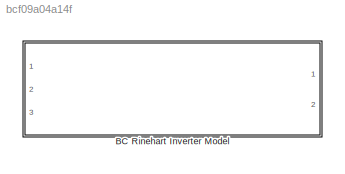
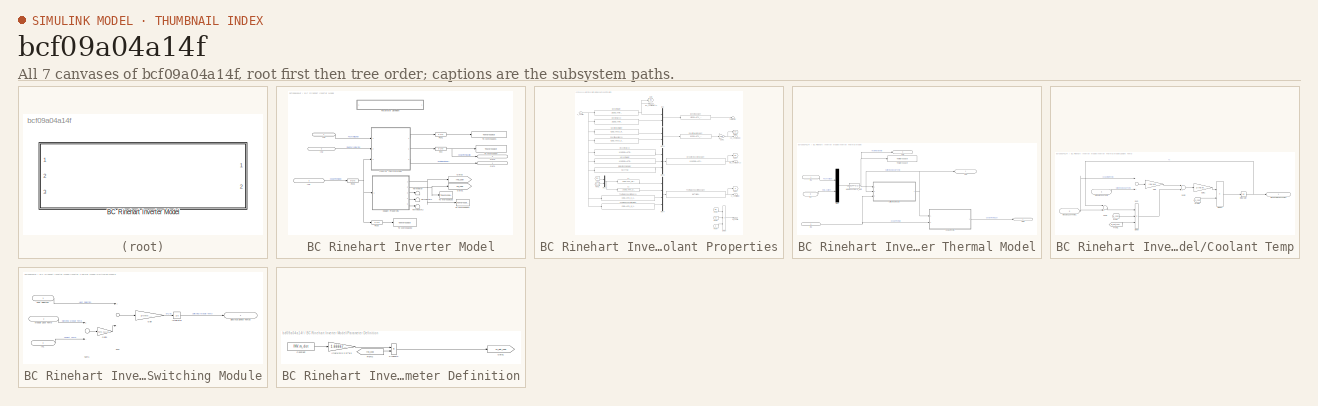
[diagram: thumbnail index - all 7 canvases of the model, root first then tree order]
MODEL slx_bcf09a04a14f
KIND model
CONFIG AbsTol = auto
CONFIG EnableMultiTasking = off
CONFIG FixedStep = 0.1
CONFIG MaxStep = auto
CONFIG MinStep = auto
CONFIG RelTol = 1e-3
CONFIG SampleTimeConstraint = Unconstrained
CONFIG Solver = ode4
CONFIG SolverName = ode4
CONFIG StartTime = 0.0
CONFIG StopTime = T_end
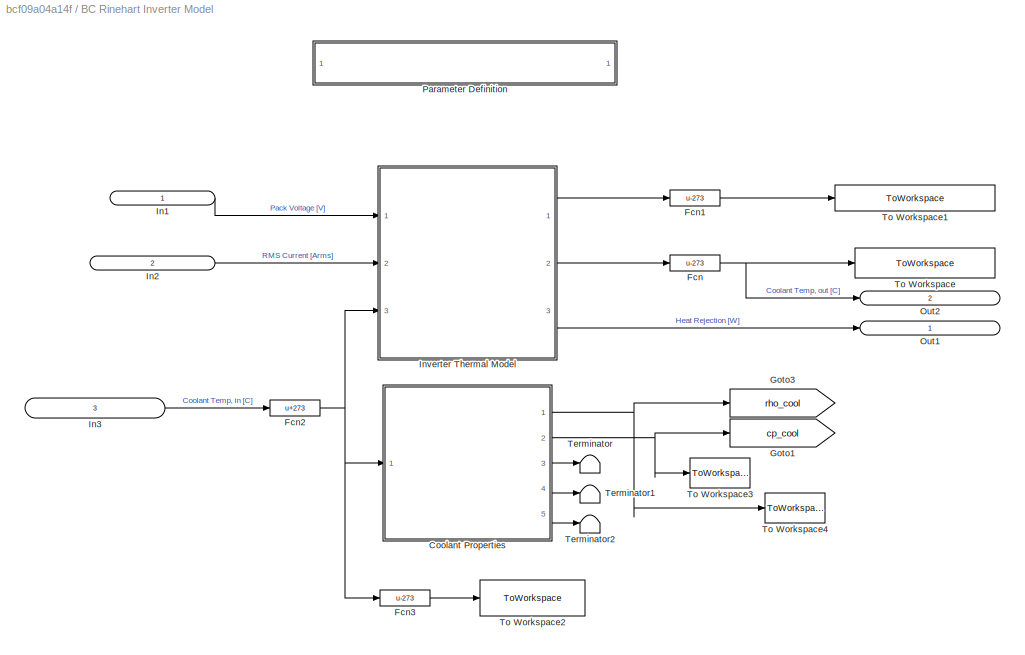
BLOCK [SubSystem] BC Rinehart Inverter Model
  Ports = [3, 2]
  RequestExecContextInheritance = off
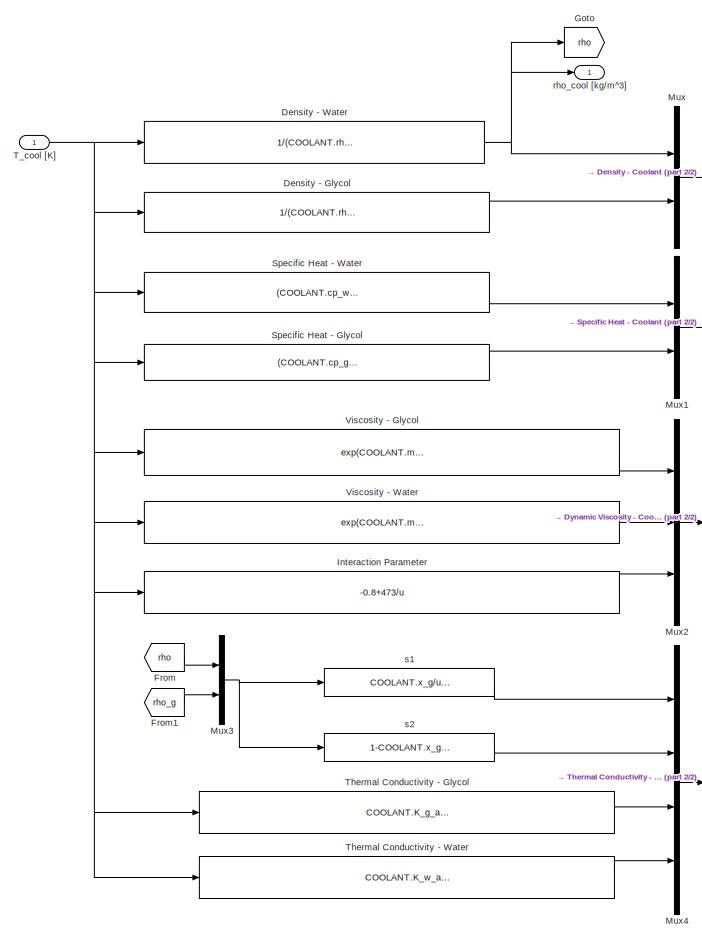
[diagram: BC Rinehart Inverter Model/Coolant Properties - part 1/2, left side, full height]
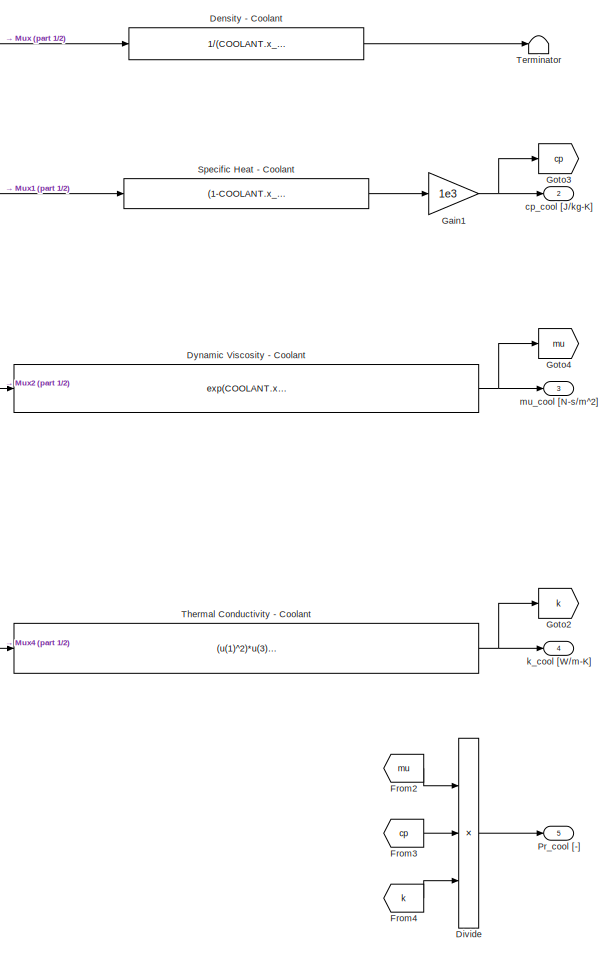
[diagram: BC Rinehart Inverter Model/Coolant Properties - part 2/2, right side, full height]
BLOCK [SubSystem] BC Rinehart Inverter Model/Coolant Properties
  Ports = [1, 5]
  RequestExecContextInheritance = off
BLOCK [Fcn] BC Rinehart Inverter Model/Coolant Properties/Density - Coolant
  Expr = 1/(COOLANT.x_g/u(1) + COOLANT.x_g/u(2))
BLOCK [Fcn] BC Rinehart Inverter Model/Coolant Properties/Density - Glycol
  Expr = 1/(COOLANT.rho_g_a+COOLANT.rho_g_b*u+COOLANT.rho_g_c*u^2)
BLOCK [Fcn] BC Rinehart Inverter Model/Coolant Properties/Density - Water
  Expr = 1/(COOLANT.rho_w_a+COOLANT.rho_w_b*u+COOLANT.rho_w_c*u^2)
BLOCK [Product] BC Rinehart Inverter Model/Coolant Properties/Divide
  InputSameDT = off
  Inputs = **/
  OutDataTypeStr = Inherit: Inherit via internal rule
  Ports = [3, 1]
  RndMeth = Floor
  SaturateOnIntegerOverflow = off
BLOCK [Fcn] BC Rinehart Inverter Model/Coolant Properties/Dynamic Viscosity - Coolant
  Expr = exp(COOLANT.x_g*log(u(1))+(1-COOLANT.x_g)*log(u(2))-COOLANT.x_g*(1-COOLANT.x_g)*u(3))
BLOCK [From] BC Rinehart Inverter Model/Coolant Properties/From
  GotoTag = rho
BLOCK [From] BC Rinehart Inverter Model/Coolant Properties/From1
  Commented = on
  GotoTag = rho_g
BLOCK [From] BC Rinehart Inverter Model/Coolant Properties/From2
  GotoTag = mu
BLOCK [From] BC Rinehart Inverter Model/Coolant Properties/From3
  GotoTag = cp
BLOCK [From] BC Rinehart Inverter Model/Coolant Properties/From4
  GotoTag = k
BLOCK [Gain] BC Rinehart Inverter Model/Coolant Properties/Gain1
  Gain = 1e3
  OutDataTypeStr = Inherit: Inherit via internal rule
  ParamDataTypeStr = Inherit: Inherit via internal rule
  SaturateOnIntegerOverflow = off
BLOCK [Goto] BC Rinehart Inverter Model/Coolant Properties/Goto
  GotoTag = rho
BLOCK [Goto] BC Rinehart Inverter Model/Coolant Properties/Goto2
  GotoTag = k
BLOCK [Goto] BC Rinehart Inverter Model/Coolant Properties/Goto3
  GotoTag = cp
BLOCK [Goto] BC Rinehart Inverter Model/Coolant Properties/Goto4
  GotoTag = mu
BLOCK [Fcn] BC Rinehart Inverter Model/Coolant Properties/Interaction Parameter
  Expr = -0.8+473/u
BLOCK [Mux] BC Rinehart Inverter Model/Coolant Properties/Mux
  DisplayOption = bar
  Inputs = 2
  Ports = [2, 1]
BLOCK [Mux] BC Rinehart Inverter Model/Coolant Properties/Mux1
  DisplayOption = bar
  Inputs = 2
  Ports = [2, 1]
BLOCK [Mux] BC Rinehart Inverter Model/Coolant Properties/Mux2
  DisplayOption = bar
  Inputs = 3
  Ports = [3, 1]
BLOCK [Mux] BC Rinehart Inverter Model/Coolant Properties/Mux3
  DisplayOption = bar
  Inputs = 2
  Ports = [2, 1]
BLOCK [Mux] BC Rinehart Inverter Model/Coolant Properties/Mux4
  DisplayOption = bar
  Ports = [4, 1]
BLOCK [Outport] BC Rinehart Inverter Model/Coolant Properties/Pr_cool [-]
  IconDisplay = Port number
  Port = 5
BLOCK [Fcn] BC Rinehart Inverter Model/Coolant Properties/Specific Heat - Coolant
  Expr = (1-COOLANT.x_g)*u(1) + COOLANT.x_g*u(2)
BLOCK [Fcn] BC Rinehart Inverter Model/Coolant Properties/Specific Heat - Glycol
  Expr = (COOLANT.cp_g_a+COOLANT.cp_g_b*u)
BLOCK [Fcn] BC Rinehart Inverter Model/Coolant Properties/Specific Heat - Water
  Expr = (COOLANT.cp_w_a+COOLANT.cp_w_b*u)
BLOCK [Inport] BC Rinehart Inverter Model/Coolant Properties/T_cool [K]
  IconDisplay = Port number
BLOCK [Terminator] BC Rinehart Inverter Model/Coolant Properties/Terminator
BLOCK [Fcn] BC Rinehart Inverter Model/Coolant Properties/Thermal Conductivity - Coolant
  Expr = (u(1)^2)*u(3)+2*u(1)*u(2)*(2/(1/u(4)+1/u(3)))+(u(2)^2)*u(4)
BLOCK [Fcn] BC Rinehart Inverter Model/Coolant Properties/Thermal Conductivity - Glycol
  Expr = COOLANT.K_g_a + COOLANT.K_g_b*u + COOLANT.K_g_c*u^2
BLOCK [Fcn] BC Rinehart Inverter Model/Coolant Properties/Thermal Conductivity - Water
  Expr = COOLANT.K_w_a + COOLANT.K_w_b*u + COOLANT.K_w_c*u^2
BLOCK [Fcn] BC Rinehart Inverter Model/Coolant Properties/Viscosity - Glycol
  Expr = exp(COOLANT.mu_g_a + COOLANT.mu_g_b/u + COOLANT.mu_g_c*u + COOLANT.mu_g_d*u^2)
BLOCK [Fcn] BC Rinehart Inverter Model/Coolant Properties/Viscosity - Water
  Expr = exp(COOLANT.mu_w_a + COOLANT.mu_w_b/u + COOLANT.mu_w_c*u + COOLANT.mu_w_d*u^2)
BLOCK [Outport] BC Rinehart Inverter Model/Coolant Properties/cp_cool [J//kg-K]
  IconDisplay = Port number
  Port = 2
BLOCK [Outport] BC Rinehart Inverter Model/Coolant Properties/k_cool [W//m-K]
  IconDisplay = Port number
  Port = 4
BLOCK [Outport] BC Rinehart Inverter Model/Coolant Properties/mu_cool [N-s//m^2]
  IconDisplay = Port number
  Port = 3
BLOCK [Outport] BC Rinehart Inverter Model/Coolant Properties/rho_cool [kg//m^3]
  IconDisplay = Port number
BLOCK [Fcn] BC Rinehart Inverter Model/Coolant Properties/s1
  Expr = COOLANT.x_g/u(2)*u(1)
BLOCK [Fcn] BC Rinehart Inverter Model/Coolant Properties/s2
  Expr = 1-COOLANT.x_g/u(2)*u(1)
BLOCK [Fcn] BC Rinehart Inverter Model/Fcn
  Expr = u-273
BLOCK [Fcn] BC Rinehart Inverter Model/Fcn1
  Expr = u-273
BLOCK [Fcn] BC Rinehart Inverter Model/Fcn2
  Expr = u+273
BLOCK [Fcn] BC Rinehart Inverter Model/Fcn3
  Expr = u-273
BLOCK [Goto] BC Rinehart Inverter Model/Goto1
  GotoTag = cp_cool
  TagVisibility = global
BLOCK [Goto] BC Rinehart Inverter Model/Goto3
  GotoTag = rho_cool
  TagVisibility = global
BLOCK [Inport] BC Rinehart Inverter Model/In1
  IconDisplay = Signal name
BLOCK [Inport] BC Rinehart Inverter Model/In2
  IconDisplay = Signal name
  Port = 2
BLOCK [Inport] BC Rinehart Inverter Model/In3
  IconDisplay = Signal name
  Port = 3
BLOCK [SubSystem] BC Rinehart Inverter Model/Inverter Thermal Model
  Ports = [3, 3]
  RequestExecContextInheritance = off
BLOCK [SubSystem] BC Rinehart Inverter Model/Inverter Thermal Model/Coolant Temp
  Ports = [2, 1]
  RequestExecContextInheritance = off
BLOCK [Product] BC Rinehart Inverter Model/Inverter Thermal Model/Coolant Temp/Divide
  InputSameDT = off
  Inputs = ***
  OutDataTypeStr = Inherit: Inherit via internal rule
  Ports = [3, 1]
  RndMeth = Floor
  SaturateOnIntegerOverflow = off
BLOCK [Product] BC Rinehart Inverter Model/Inverter Thermal Model/Coolant Temp/Divide1
  InputSameDT = off
  Inputs = */
  OutDataTypeStr = Inherit: Inherit via internal rule
  Ports = [2, 1]
  RndMeth = Floor
  SaturateOnIntegerOverflow = off
BLOCK [Outport] BC Rinehart Inverter Model/Inverter Thermal Model/Coolant Temp/Electrical Device Temps
  IconDisplay = Port number and signal name
BLOCK [From] BC Rinehart Inverter Model/Inverter Thermal Model/Coolant Temp/From
  GotoTag = cp_cool
  TagVisibility = global
BLOCK [From] BC Rinehart Inverter Model/Inverter Thermal Model/Coolant Temp/From1
  GotoTag = m_dot_cool
  TagVisibility = global
BLOCK [From] BC Rinehart Inverter Model/Inverter Thermal Model/Coolant Temp/From2
  GotoTag = cp_cool
  TagVisibility = global
BLOCK [Gain] BC Rinehart Inverter Model/Inverter Thermal Model/Coolant Temp/Gain
  Gain = INV.UA1
  OutDataTypeStr = Inherit: Inherit via internal rule
  ParamDataTypeStr = Inherit: Inherit via internal rule
  SaturateOnIntegerOverflow = off
BLOCK [Gain] BC Rinehart Inverter Model/Inverter Thermal Model/Coolant Temp/Gain1
  Gain = 1/INV.m_cool
  OutDataTypeStr = Inherit: Inherit via internal rule
  ParamDataTypeStr = Inherit: Inherit via internal rule
  SaturateOnIntegerOverflow = off
BLOCK [Integrator] BC Rinehart Inverter Model/Inverter Thermal Model/Coolant Temp/Integrator
  InitialCondition = DATA.ITM(1,2)+273
  Ports = [1, 1]
BLOCK [Inport] BC Rinehart Inverter Model/Inverter Thermal Model/Coolant Temp/Module Case Temp
  IconDisplay = Port number and signal name
BLOCK [Inport] BC Rinehart Inverter Model/Inverter Thermal Model/Coolant Temp/Module Case Temp1
  IconDisplay = Port number and signal name
  Port = 2
BLOCK [Sum] BC Rinehart Inverter Model/Inverter Thermal Model/Coolant Temp/Sum
  InputSameDT = off
  Inputs = -+
  OutDataTypeStr = Inherit: Inherit via internal rule
  Ports = [2, 1]
  SaturateOnIntegerOverflow = off
BLOCK [Sum] BC Rinehart Inverter Model/Inverter Thermal Model/Coolant Temp/Sum1
  InputSameDT = off
  Inputs = -+
  OutDataTypeStr = Inherit: Inherit via internal rule
  Ports = [2, 1]
  SaturateOnIntegerOverflow = off
BLOCK [Sum] BC Rinehart Inverter Model/Inverter Thermal Model/Coolant Temp/Sum2
  InputSameDT = off
  OutDataTypeStr = Inherit: Inherit via internal rule
  Ports = [2, 1]
  SaturateOnIntegerOverflow = off
BLOCK [Fcn] BC Rinehart Inverter Model/Inverter Thermal Model/Heat Loss Calc (q_dot)
  Expr = 0.000244*u(1)^1.072*u(2)^1.695+456.4
BLOCK [Inport] BC Rinehart Inverter Model/Inverter Thermal Model/In1
  IconDisplay = Port number and signal name
BLOCK [Inport] BC Rinehart Inverter Model/Inverter Thermal Model/In2
  IconDisplay = Port number and signal name
  Port = 2
BLOCK [Inport] BC Rinehart Inverter Model/Inverter Thermal Model/In3
  IconDisplay = Port number and signal name
  Port = 3
BLOCK [Mux] BC Rinehart Inverter Model/Inverter Thermal Model/Mux
  DisplayOption = bar
  Inputs = 2
  Ports = [2, 1]
BLOCK [Outport] BC Rinehart Inverter Model/Inverter Thermal Model/Out1
  IconDisplay = Port number and signal name
BLOCK [Outport] BC Rinehart Inverter Model/Inverter Thermal Model/Out2
  IconDisplay = Signal name
  Port = 3
BLOCK [Outport] BC Rinehart Inverter Model/Inverter Thermal Model/Out3
  IconDisplay = Port number and signal name
  Port = 2
BLOCK [SubSystem] BC Rinehart Inverter Model/Inverter Thermal Model/Switching Module
  Ports = [3, 1]
  RequestExecContextInheritance = off
BLOCK [Outport] BC Rinehart Inverter Model/Inverter Thermal Model/Switching Module/Electrical Device Temps
  IconDisplay = Port number and signal name
BLOCK [Gain] BC Rinehart Inverter Model/Inverter Thermal Model/Switching Module/Gain
  Gain = 1/(INV.M1*INV.C1)
  OutDataTypeStr = Inherit: Inherit via internal rule
  ParamDataTypeStr = Inherit: Inherit via internal rule
  SaturateOnIntegerOverflow = off
BLOCK [Gain] BC Rinehart Inverter Model/Inverter Thermal Model/Switching Module/Gain1
  Gain = INV.UA1
  OutDataTypeStr = Inherit: Inherit via internal rule
  ParamDataTypeStr = Inherit: Inherit via internal rule
  SaturateOnIntegerOverflow = off
BLOCK [Inport] BC Rinehart Inverter Model/Inverter Thermal Model/Switching Module/Heat Rejection
  IconDisplay = Port number and signal name
BLOCK [Inport] BC Rinehart Inverter Model/Inverter Thermal Model/Switching Module/In1
  IconDisplay = Port number and signal name
  Port = 3
BLOCK [Integrator] BC Rinehart Inverter Model/Inverter Thermal Model/Switching Module/Integrator
  InitialCondition = INV.T_init
  Ports = [1, 1]
BLOCK [Inport] BC Rinehart Inverter Model/Inverter Thermal Model/Switching Module/Module Case Temp
  IconDisplay = Port number and signal name
  Port = 2
BLOCK [Sum] BC Rinehart Inverter Model/Inverter Thermal Model/Switching Module/Sum
  InputSameDT = off
  Inputs = +-
  OutDataTypeStr = Inherit: Inherit via internal rule
  Ports = [2, 1]
  SaturateOnIntegerOverflow = off
BLOCK [Sum] BC Rinehart Inverter Model/Inverter Thermal Model/Switching Module/Sum1
  InputSameDT = off
  Inputs = +-
  OutDataTypeStr = Inherit: Inherit via internal rule
  Ports = [2, 1]
  SaturateOnIntegerOverflow = off
BLOCK [ToWorkspace] BC Rinehart Inverter Model/Inverter Thermal Model/To Workspace
  FixptAsFi = on
  MaxDataPoints = inf
  Ports = [1]
  SampleTime = -1
  Save2DSignal = 3-D array (concatenate along third dimension)
  VariableName = Inverter_Heat_Rejection_W
BLOCK [Outport] BC Rinehart Inverter Model/Out1
  IconDisplay = Signal name
BLOCK [Outport] BC Rinehart Inverter Model/Out2
  IconDisplay = Signal name
  Port = 2
BLOCK [SubSystem] BC Rinehart Inverter Model/Parameter Definition
  Ports = []
  RequestExecContextInheritance = off
BLOCK [Constant] BC Rinehart Inverter Model/Parameter Definition/Constant
  Value = INV.m_dot
BLOCK [From] BC Rinehart Inverter Model/Parameter Definition/From2
  GotoTag = rho_cool
  TagVisibility = global
BLOCK [Goto] BC Rinehart Inverter Model/Parameter Definition/Goto1
  GotoTag = m_dot_cool
  TagVisibility = global
BLOCK [Product] BC Rinehart Inverter Model/Parameter Definition/Product2
  InputSameDT = off
  OutDataTypeStr = Inherit: Inherit via internal rule
  Ports = [2, 1]
  RndMeth = Floor
  SaturateOnIntegerOverflow = off
BLOCK [Gain] BC Rinehart Inverter Model/Parameter Definition/liters//min 2 m^3//s
  Gain = 1.66667e-5
  OutDataTypeStr = Inherit: Inherit via internal rule
  ParamDataTypeStr = Inherit: Inherit via internal rule
  SaturateOnIntegerOverflow = off
BLOCK [Terminator] BC Rinehart Inverter Model/Terminator
BLOCK [Terminator] BC Rinehart Inverter Model/Terminator1
BLOCK [Terminator] BC Rinehart Inverter Model/Terminator2
BLOCK [ToWorkspace] BC Rinehart Inverter Model/To Workspace
  FixptAsFi = on
  MaxDataPoints = inf
  Ports = [1]
  SampleTime = -1
  Save2DSignal = 3-D array (concatenate along third dimension)
  VariableName = Inverter_T_cool_out_C
BLOCK [ToWorkspace] BC Rinehart Inverter Model/To Workspace1
  FixptAsFi = on
  MaxDataPoints = inf
  Ports = [1]
  SampleTime = -1
  Save2DSignal = 3-D array (concatenate along third dimension)
  VariableName = Inverter_SwitchingModuleTemp_C
BLOCK [ToWorkspace] BC Rinehart Inverter Model/To Workspace2
  FixptAsFi = on
  MaxDataPoints = inf
  Ports = [1]
  SampleTime = -1
  Save2DSignal = 3-D array (concatenate along third dimension)
  VariableName = Inverter_T_cool_in_C
BLOCK [ToWorkspace] BC Rinehart Inverter Model/To Workspace3
  FixptAsFi = on
  MaxDataPoints = inf
  Ports = [1]
  SampleTime = -1
  Save2DSignal = 3-D array (concatenate along third dimension)
  VariableName = cp_cool
BLOCK [ToWorkspace] BC Rinehart Inverter Model/To Workspace4
  FixptAsFi = on
  MaxDataPoints = inf
  Ports = [1]
  SampleTime = -1
  Save2DSignal = 3-D array (concatenate along third dimension)
  VariableName = rho_cool
LINE BC Rinehart Inverter Model/Coolant Properties/Density - Coolant:1 -> BC Rinehart Inverter Model/Coolant Properties/Terminator:1
LINE BC Rinehart Inverter Model/Coolant Properties/Density - Glycol:1 -> BC Rinehart Inverter Model/Coolant Properties/Mux:2
NET BC Rinehart Inverter Model/Coolant Properties/Density - Water:1 -> BC Rinehart Inverter Model/Coolant Properties/Goto:1, BC Rinehart Inverter Model/Coolant Properties/Mux:1, BC Rinehart Inverter Model/Coolant Properties/rho_cool [kg//m^3]:1
LINE BC Rinehart Inverter Model/Coolant Properties/Divide:1 -> BC Rinehart Inverter Model/Coolant Properties/Pr_cool [-]:1
NET BC Rinehart Inverter Model/Coolant Properties/Dynamic Viscosity - Coolant:1 -> BC Rinehart Inverter Model/Coolant Properties/Goto4:1, BC Rinehart Inverter Model/Coolant Properties/mu_cool [N-s//m^2]:1
LINE BC Rinehart Inverter Model/Coolant Properties/From1:1 -> BC Rinehart Inverter Model/Coolant Properties/Mux3:2
LINE BC Rinehart Inverter Model/Coolant Properties/From2:1 -> BC Rinehart Inverter Model/Coolant Properties/Divide:1
LINE BC Rinehart Inverter Model/Coolant Properties/From3:1 -> BC Rinehart Inverter Model/Coolant Properties/Divide:2
LINE BC Rinehart Inverter Model/Coolant Properties/From4:1 -> BC Rinehart Inverter Model/Coolant Properties/Divide:3
LINE BC Rinehart Inverter Model/Coolant Properties/From:1 -> BC Rinehart Inverter Model/Coolant Properties/Mux3:1
NET BC Rinehart Inverter Model/Coolant Properties/Gain1:1 -> BC Rinehart Inverter Model/Coolant Properties/Goto3:1, BC Rinehart Inverter Model/Coolant Properties/cp_cool [J//kg-K]:1
LINE BC Rinehart Inverter Model/Coolant Properties/Interaction Parameter:1 -> BC Rinehart Inverter Model/Coolant Properties/Mux2:3
LINE BC Rinehart Inverter Model/Coolant Properties/Mux1:1 -> BC Rinehart Inverter Model/Coolant Properties/Specific Heat - Coolant:1
LINE BC Rinehart Inverter Model/Coolant Properties/Mux2:1 -> BC Rinehart Inverter Model/Coolant Properties/Dynamic Viscosity - Coolant:1
NET BC Rinehart Inverter Model/Coolant Properties/Mux3:1 -> BC Rinehart Inverter Model/Coolant Properties/s1:1, BC Rinehart Inverter Model/Coolant Properties/s2:1
LINE BC Rinehart Inverter Model/Coolant Properties/Mux4:1 -> BC Rinehart Inverter Model/Coolant Properties/Thermal Conductivity - Coolant:1
LINE BC Rinehart Inverter Model/Coolant Properties/Mux:1 -> BC Rinehart Inverter Model/Coolant Properties/Density - Coolant:1
LINE BC Rinehart Inverter Model/Coolant Properties/Specific Heat - Coolant:1 -> BC Rinehart Inverter Model/Coolant Properties/Gain1:1
LINE BC Rinehart Inverter Model/Coolant Properties/Specific Heat - Glycol:1 -> BC Rinehart Inverter Model/Coolant Properties/Mux1:2
LINE BC Rinehart Inverter Model/Coolant Properties/Specific Heat - Water:1 -> BC Rinehart Inverter Model/Coolant Properties/Mux1:1
NET BC Rinehart Inverter Model/Coolant Properties/T_cool [K]:1 -> BC Rinehart Inverter Model/Coolant Properties/Density - Glycol:1, BC Rinehart Inverter Model/Coolant Properties/Density - Water:1, BC Rinehart Inverter Model/Coolant Properties/Interaction Parameter:1, BC Rinehart Inverter Model/Coolant Properties/Specific Heat - Glycol:1, BC Rinehart Inverter Model/Coolant Properties/Specific Heat - Water:1, BC Rinehart Inverter Model/Coolant Properties/Thermal Conductivity - Glycol:1, BC Rinehart Inverter Model/Coolant Properties/Thermal Conductivity - Water:1, BC Rinehart Inverter Model/Coolant Properties/Viscosity - Glycol:1, BC Rinehart Inverter Model/Coolant Properties/Viscosity - Water:1
NET BC Rinehart Inverter Model/Coolant Properties/Thermal Conductivity - Coolant:1 -> BC Rinehart Inverter Model/Coolant Properties/Goto2:1, BC Rinehart Inverter Model/Coolant Properties/k_cool [W//m-K]:1
LINE BC Rinehart Inverter Model/Coolant Properties/Thermal Conductivity - Glycol:1 -> BC Rinehart Inverter Model/Coolant Properties/Mux4:3
LINE BC Rinehart Inverter Model/Coolant Properties/Thermal Conductivity - Water:1 -> BC Rinehart Inverter Model/Coolant Properties/Mux4:4
LINE BC Rinehart Inverter Model/Coolant Properties/Viscosity - Glycol:1 -> BC Rinehart Inverter Model/Coolant Properties/Mux2:1
LINE BC Rinehart Inverter Model/Coolant Properties/Viscosity - Water:1 -> BC Rinehart Inverter Model/Coolant Properties/Mux2:2
LINE BC Rinehart Inverter Model/Coolant Properties/s1:1 -> BC Rinehart Inverter Model/Coolant Properties/Mux4:1
LINE BC Rinehart Inverter Model/Coolant Properties/s2:1 -> BC Rinehart Inverter Model/Coolant Properties/Mux4:2
NET BC Rinehart Inverter Model/Coolant Properties:1 -> BC Rinehart Inverter Model/Goto3:1, BC Rinehart Inverter Model/To Workspace4:1
NET BC Rinehart Inverter Model/Coolant Properties:2 -> BC Rinehart Inverter Model/Goto1:1, BC Rinehart Inverter Model/To Workspace3:1
LINE BC Rinehart Inverter Model/Coolant Properties:3 -> BC Rinehart Inverter Model/Terminator:1
LINE BC Rinehart Inverter Model/Coolant Properties:4 -> BC Rinehart Inverter Model/Terminator1:1
LINE BC Rinehart Inverter Model/Coolant Properties:5 -> BC Rinehart Inverter Model/Terminator2:1
LINE BC Rinehart Inverter Model/Fcn1:1 -> BC Rinehart Inverter Model/To Workspace1:1
NET BC Rinehart Inverter Model/Fcn2:1 -> BC Rinehart Inverter Model/Coolant Properties:1, BC Rinehart Inverter Model/Fcn3:1, BC Rinehart Inverter Model/Inverter Thermal Model:3
LINE BC Rinehart Inverter Model/Fcn3:1 -> BC Rinehart Inverter Model/To Workspace2:1
NET BC Rinehart Inverter Model/Fcn:1 -> BC Rinehart Inverter Model/Out2:1, BC Rinehart Inverter Model/To Workspace:1
LINE BC Rinehart Inverter Model/In1:1 -> BC Rinehart Inverter Model/Inverter Thermal Model:1
LINE BC Rinehart Inverter Model/In2:1 -> BC Rinehart Inverter Model/Inverter Thermal Model:2
LINE BC Rinehart Inverter Model/In3:1 -> BC Rinehart Inverter Model/Fcn2:1
LINE BC Rinehart Inverter Model/Inverter Thermal Model/Coolant Temp/Divide1:1 -> BC Rinehart Inverter Model/Inverter Thermal Model/Coolant Temp/Integrator:1
LINE BC Rinehart Inverter Model/Inverter Thermal Model/Coolant Temp/Divide:1 -> BC Rinehart Inverter Model/Inverter Thermal Model/Coolant Temp/Sum2:2
LINE BC Rinehart Inverter Model/Inverter Thermal Model/Coolant Temp/From1:1 -> BC Rinehart Inverter Model/Inverter Thermal Model/Coolant Temp/Divide:3
LINE BC Rinehart Inverter Model/Inverter Thermal Model/Coolant Temp/From2:1 -> BC Rinehart Inverter Model/Inverter Thermal Model/Coolant Temp/Divide1:2
LINE BC Rinehart Inverter Model/Inverter Thermal Model/Coolant Temp/From:1 -> BC Rinehart Inverter Model/Inverter Thermal Model/Coolant Temp/Divide:2
LINE BC Rinehart Inverter Model/Inverter Thermal Model/Coolant Temp/Gain1:1 -> BC Rinehart Inverter Model/Inverter Thermal Model/Coolant Temp/Divide1:1
LINE BC Rinehart Inverter Model/Inverter Thermal Model/Coolant Temp/Gain:1 -> BC Rinehart Inverter Model/Inverter Thermal Model/Coolant Temp/Sum2:1
NET BC Rinehart Inverter Model/Inverter Thermal Model/Coolant Temp/Integrator:1 -> BC Rinehart Inverter Model/Inverter Thermal Model/Coolant Temp/Electrical Device Temps:1, BC Rinehart Inverter Model/Inverter Thermal Model/Coolant Temp/Sum1:1
NET BC Rinehart Inverter Model/Inverter Thermal Model/Coolant Temp/Module Case Temp1:1 -> BC Rinehart Inverter Model/Inverter Thermal Model/Coolant Temp/Sum1:2, BC Rinehart Inverter Model/Inverter Thermal Model/Coolant Temp/Sum:1
LINE BC Rinehart Inverter Model/Inverter Thermal Model/Coolant Temp/Module Case Temp:1 -> BC Rinehart Inverter Model/Inverter Thermal Model/Coolant Temp/Sum:2
LINE BC Rinehart Inverter Model/Inverter Thermal Model/Coolant Temp/Sum1:1 -> BC Rinehart Inverter Model/Inverter Thermal Model/Coolant Temp/Divide:1
LINE BC Rinehart Inverter Model/Inverter Thermal Model/Coolant Temp/Sum2:1 -> BC Rinehart Inverter Model/Inverter Thermal Model/Coolant Temp/Gain1:1
LINE BC Rinehart Inverter Model/Inverter Thermal Model/Coolant Temp/Sum:1 -> BC Rinehart Inverter Model/Inverter Thermal Model/Coolant Temp/Gain:1
LINE BC Rinehart Inverter Model/Inverter Thermal Model/Coolant Temp:1 -> BC Rinehart Inverter Model/Inverter Thermal Model/Out3:1
NET BC Rinehart Inverter Model/Inverter Thermal Model/Heat Loss Calc (q_dot):1 -> BC Rinehart Inverter Model/Inverter Thermal Model/Out2:1, BC Rinehart Inverter Model/Inverter Thermal Model/Switching Module:1, BC Rinehart Inverter Model/Inverter Thermal Model/To Workspace:1
LINE BC Rinehart Inverter Model/Inverter Thermal Model/In1:1 -> BC Rinehart Inverter Model/Inverter Thermal Model/Mux:1
LINE BC Rinehart Inverter Model/Inverter Thermal Model/In2:1 -> BC Rinehart Inverter Model/Inverter Thermal Model/Mux:2
NET BC Rinehart Inverter Model/Inverter Thermal Model/In3:1 -> BC Rinehart Inverter Model/Inverter Thermal Model/Coolant Temp:2, BC Rinehart Inverter Model/Inverter Thermal Model/Switching Module:3
LINE BC Rinehart Inverter Model/Inverter Thermal Model/Mux:1 -> BC Rinehart Inverter Model/Inverter Thermal Model/Heat Loss Calc (q_dot):1
LINE BC Rinehart Inverter Model/Inverter Thermal Model/Switching Module/Gain1:1 -> BC Rinehart Inverter Model/Inverter Thermal Model/Switching Module/Sum:2
LINE BC Rinehart Inverter Model/Inverter Thermal Model/Switching Module/Gain:1 -> BC Rinehart Inverter Model/Inverter Thermal Model/Switching Module/Integrator:1
LINE BC Rinehart Inverter Model/Inverter Thermal Model/Switching Module/Heat Rejection:1 -> BC Rinehart Inverter Model/Inverter Thermal Model/Switching Module/Sum:1
LINE BC Rinehart Inverter Model/Inverter Thermal Model/Switching Module/In1:1 -> BC Rinehart Inverter Model/Inverter Thermal Model/Switching Module/Sum1:2
LINE BC Rinehart Inverter Model/Inverter Thermal Model/Switching Module/Integrator:1 -> BC Rinehart Inverter Model/Inverter Thermal Model/Switching Module/Electrical Device Temps:1
LINE BC Rinehart Inverter Model/Inverter Thermal Model/Switching Module/Module Case Temp:1 -> BC Rinehart Inverter Model/Inverter Thermal Model/Switching Module/Sum1:1
LINE BC Rinehart Inverter Model/Inverter Thermal Model/Switching Module/Sum1:1 -> BC Rinehart Inverter Model/Inverter Thermal Model/Switching Module/Gain1:1
LINE BC Rinehart Inverter Model/Inverter Thermal Model/Switching Module/Sum:1 -> BC Rinehart Inverter Model/Inverter Thermal Model/Switching Module/Gain:1
NET BC Rinehart Inverter Model/Inverter Thermal Model/Switching Module:1 -> BC Rinehart Inverter Model/Inverter Thermal Model/Coolant Temp:1, BC Rinehart Inverter Model/Inverter Thermal Model/Out1:1, BC Rinehart Inverter Model/Inverter Thermal Model/Switching Module:2
LINE BC Rinehart Inverter Model/Inverter Thermal Model:1 -> BC Rinehart Inverter Model/Fcn1:1
LINE BC Rinehart Inverter Model/Inverter Thermal Model:2 -> BC Rinehart Inverter Model/Fcn:1
LINE BC Rinehart Inverter Model/Inverter Thermal Model:3 -> BC Rinehart Inverter Model/Out1:1
LINE BC Rinehart Inverter Model/Parameter Definition/Constant:1 -> BC Rinehart Inverter Model/Parameter Definition/liters//min 2 m^3//s:1
LINE BC Rinehart Inverter Model/Parameter Definition/From2:1 -> BC Rinehart Inverter Model/Parameter Definition/Product2:2
LINE BC Rinehart Inverter Model/Parameter Definition/Product2:1 -> BC Rinehart Inverter Model/Parameter Definition/Goto1:1
LINE BC Rinehart Inverter Model/Parameter Definition/liters//min 2 m^3//s:1 -> BC Rinehart Inverter Model/Parameter Definition/Product2:1
note: NET lines group one-source signal fan-out (src -> all destinations, sorted); 1:1 wires keep LINE
